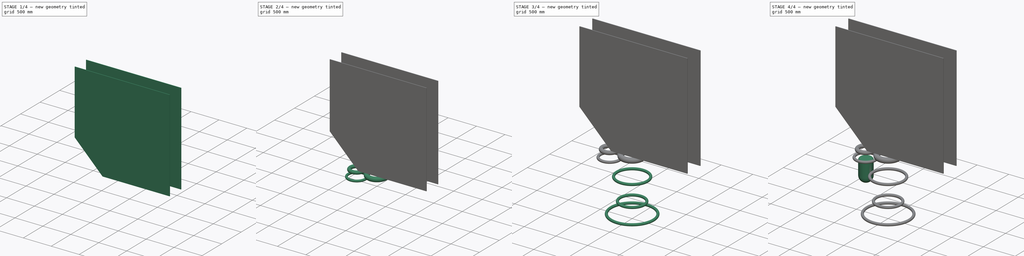
[diagram: build sequence overview — one tinted view per stage of 4, left to right]
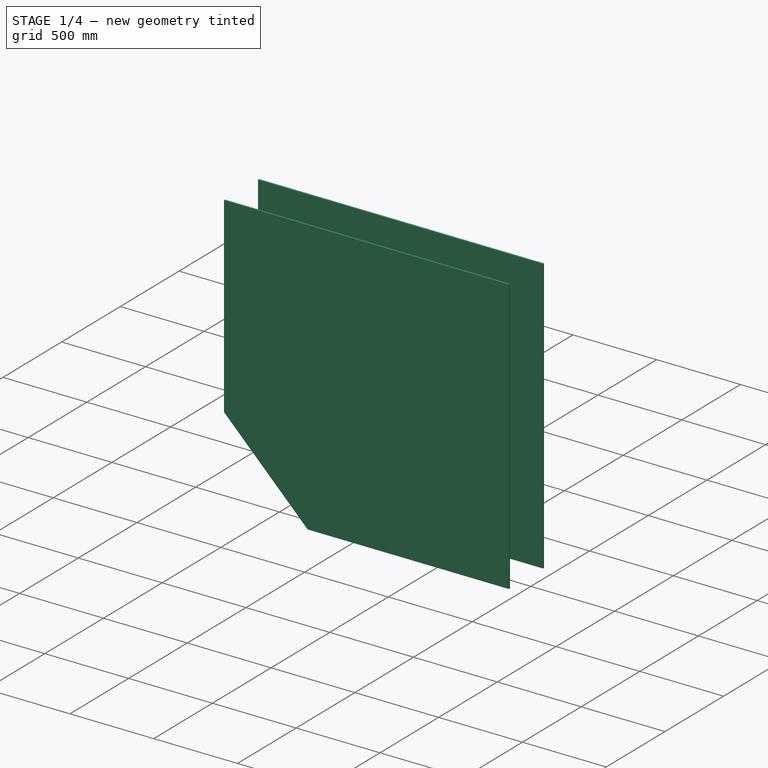
[diagram: stage 1 of 4 — iso view after this stage's code; geometry added in this stage tinted green]
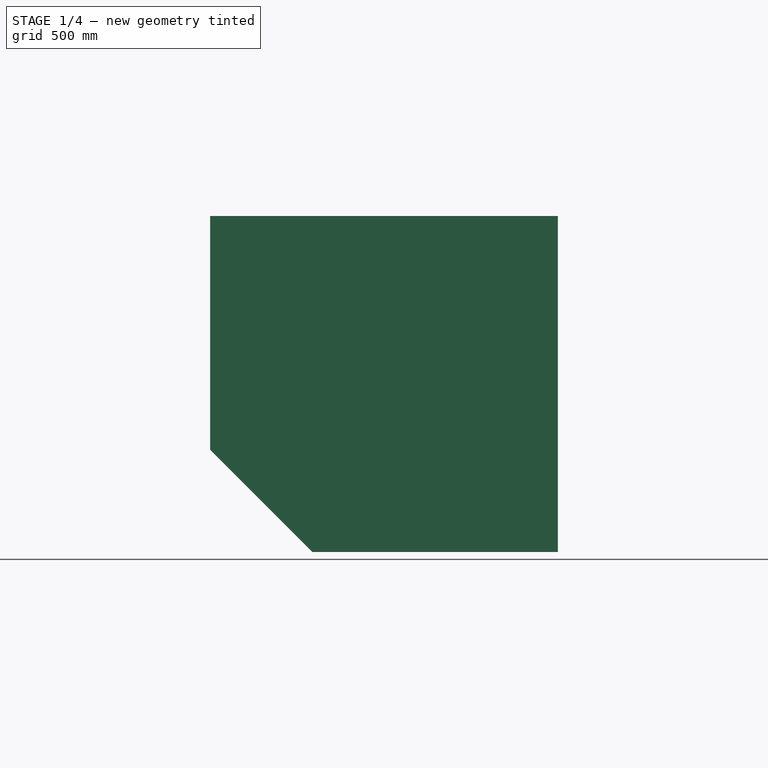
[diagram: stage 1 of 4 — front view after this stage's code; geometry added in this stage tinted green]
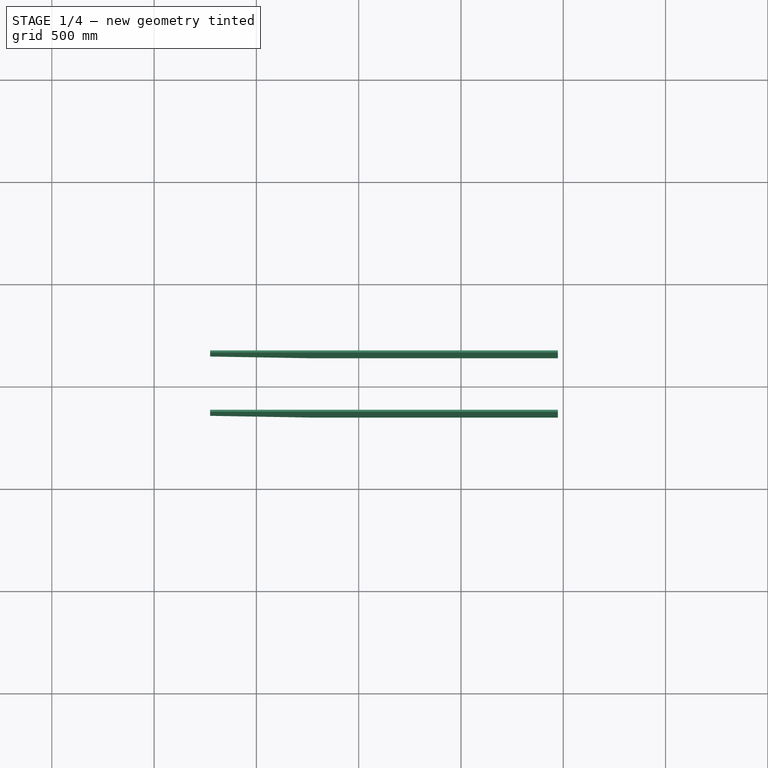
[diagram: stage 1 of 4 — top view after this stage's code; geometry added in this stage tinted green]
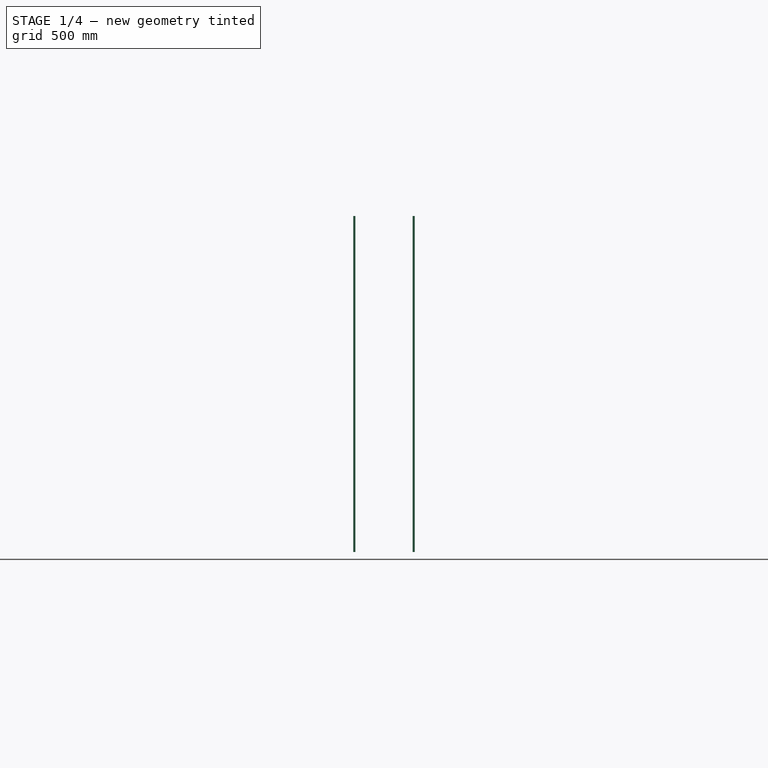
[diagram: stage 1 of 4 — right view after this stage's code; geometry added in this stage tinted green]
FCSTD DOCUMENT  (FreeCAD 0.17R13509 (Git))
Label: raptor
License: All rights reserved
LicenseURL: http://en.wikipedia.org/wiki/All_rights_reserved
objects: Sketcher::SketchObject×11, Part::Torus×6, Part::Revolution×4, Part::Sweep×2, App::Part×2, Part::Extrusion×2, Part::Cylinder×1, Part::Fillet×1
note: 27 computed .brp shape members not serialized (recipe doc carries the construction recipe); baked Part::Feature solids carry a one-line shape summary decoded from their .brp

FEATURE [Sketcher::SketchObject] Sketch006  label="injector sketch"
  Placement = pos=(0,0,0) rot=(1,0,0;1.5708rad)
  sketch-geometry (9):
    g0: Circle [constr] CenterX=110 CenterY=2200 CenterZ=0 NormalX=0 NormalY=0 NormalZ=1 AngleXU=0 Radius=10
    g1: Circle [constr] CenterX=110 CenterY=2140 CenterZ=0 NormalX=0 NormalY=0 NormalZ=1 AngleXU=0 Radius=10
    g2: Circle [constr] CenterX=146.985 CenterY=2082.42 CenterZ=0 NormalX=0 NormalY=0 NormalZ=1 AngleXU=0 Radius=10
    g3: BSplineCurve PolesCount=3 KnotsCount=2 Degree=2 IsPeriodic=0
    g4: GeomPoint [constr] X=110 Y=2200 Z=0
    g5: GeomPoint [constr] X=146.985 Y=2082.42 Z=0
    g6: LineSegment StartX=110 StartY=2200 StartZ=0 EndX=150 EndY=2238 EndZ=0
    g7: LineSegment StartX=150 StartY=2238 StartZ=0 EndX=150 EndY=2260 EndZ=0
    g8: LineSegment StartX=150 StartY=2260 StartZ=0 EndX=0 EndY=2260 EndZ=0
  constraints (13):
    c: Radius(g0) = 10
    c: Equal(g0,g1)
    c: Equal(g0,g2)
    c: InternalAlignment(g0,g3)
    c: InternalAlignment(g1,g3)
    c: InternalAlignment(g2,g3)
    c: InternalAlignment(g4,g3)
    c: InternalAlignment(g5,g3)
    c: Coincident(g6,g0)
    c: Coincident(g7,g6)
    c: Vertical(g7)
    c: Coincident(g8,g7)
    c: Horizontal(g8)
FEATURE [Part::Revolution] Revolve002  label="injector"
  Angle = 360
  Axis = (0,0,1)
  Base = (0,0,0)
  FaceMakerClass = Part::FaceMakerBullseye
  Solid = false
  Source = -> Sketch006
  Symmetric = false
FEATURE [Sketcher::SketchObject] Sketch007  label="lox sketch"
  Placement = pos=(0,0,0) rot=(1,0,0;1.5708rad)
  sketch-geometry (10):
    g0: Circle [constr] CenterX=-233.911 CenterY=2196.94 CenterZ=0 NormalX=0 NormalY=0 NormalZ=1 AngleXU=0 Radius=10
    g1: Circle [constr] CenterX=-293.034 CenterY=2140 CenterZ=0 NormalX=0 NormalY=0 NormalZ=1 AngleXU=0 Radius=10
    g2: Circle [constr] CenterX=-210 CenterY=2080 CenterZ=0 NormalX=0 NormalY=0 NormalZ=1 AngleXU=0 Radius=10
    g3: BSplineCurve PolesCount=3 KnotsCount=2 Degree=2 IsPeriodic=0
    g4: GeomPoint [constr] X=-233.911 Y=2196.94 Z=0
    g5: GeomPoint [constr] X=-210 Y=2080 Z=0
    g6: LineSegment StartX=-233.911 StartY=2196.94 StartZ=0 EndX=-291.228 EndY=2281.45 EndZ=0
    g7: LineSegment StartX=-291.228 StartY=2281.45 StartZ=0 EndX=-291.228 EndY=2461.19 EndZ=0
    g8: LineSegment StartX=-291.228 StartY=2461.19 StartZ=0 EndX=-354 EndY=2461.19 EndZ=0
    g9: LineSegment StartX=-210 StartY=2080 StartZ=0 EndX=-354 EndY=2080 EndZ=0
  constraints (17):
    c: Radius(g0) = 10
    c: Equal(g0,g1)
    c: Equal(g0,g2)
    c: InternalAlignment(g0,g3)
    c: InternalAlignment(g1,g3)
    c: InternalAlignment(g2,g3)
    c: InternalAlignment(g4,g3)
    c: InternalAlignment(g5,g3)
    c: Coincident(g6,g0)
    c: Coincident(g7,g6)
    c: Vertical(g7)
    c: Coincident(g8,g7)
    c: Horizontal(g8)
    c: Coincident(g9,g2)
    c: Horizontal(g9)
    c: DistanceX(g8,g-1) = 354
    c: DistanceX(g8,g9) = 0
FEATURE [Part::Revolution] Revolve003  label="lox pump"
  Angle = 360
  Axis = (0,0,1)
  Base = (-354,0,0)
  FaceMakerClass = Part::FaceMakerBullseye
  Solid = false
  Source = -> Sketch007
  Symmetric = false
FEATURE [Sketcher::SketchObject] Sketch008  label="fuel sketch1"
  Placement = pos=(0,0,0) rot=(0.57735,0.57735,0.57735;2.0944rad)
  sketch-geometry (12):
    g0: Circle [constr] CenterX=-157.166 CenterY=2200 CenterZ=0 NormalX=0 NormalY=0 NormalZ=1 AngleXU=0 Radius=20
    g1: Circle [constr] CenterX=-241.173 CenterY=2212.08 CenterZ=0 NormalX=0 NormalY=0 NormalZ=1 AngleXU=0 Radius=20
    g2: Circle [constr] CenterX=-277.305 CenterY=2115.42 CenterZ=0 NormalX=0 NormalY=0 NormalZ=1 AngleXU=0 Radius=20
    g3: BSplineCurve PolesCount=3 KnotsCount=2 Degree=2 IsPeriodic=0
    g4: GeomPoint [constr] X=-157.166 Y=2200 Z=0
    g5: GeomPoint [constr] X=-277.305 Y=2115.42 Z=0
    g6: Circle [constr] CenterX=-277.305 CenterY=2115.42 CenterZ=0 NormalX=0 NormalY=0 NormalZ=1 AngleXU=0 Radius=40
    g7: Circle [constr] CenterX=-362.731 CenterY=1907.44 CenterZ=0 NormalX=0 NormalY=0 NormalZ=1 AngleXU=0 Radius=194.246
    g8: Circle [constr] CenterX=-198.718 CenterY=1566.22 CenterZ=0 NormalX=0 NormalY=0 NormalZ=1 AngleXU=0 Radius=40
    g9: BSplineCurve PolesCount=3 KnotsCount=2 Degree=2 IsPeriodic=0
    g10: GeomPoint [constr] X=-277.305 Y=2115.42 Z=0
    g11: GeomPoint [constr] X=-198.718 Y=1566.22 Z=0
  constraints (16):
    c: Radius(g0) = 20
    c: Equal(g0,g1)
    c: Equal(g0,g2)
    c: InternalAlignment(g0,g3)
    c: InternalAlignment(g1,g3)
    c: InternalAlignment(g2,g3)
    c: InternalAlignment(g4,g3)
    c: InternalAlignment(g5,g3)
    c: Coincident(g6,g2)
    c: Radius(g6) = 40
    c: Equal(g6,g8)
    c: InternalAlignment(g6,g9)
    c: InternalAlignment(g7,g9)
    c: InternalAlignment(g8,g9)
    c: InternalAlignment(g10,g9)
    c: InternalAlignment(g11,g9)
FEATURE [Sketcher::SketchObject] Sketch009  label="fuel sketch2"
  Placement = pos=(0,-157,0) rot=(1,0,0;1.5708rad)
  sketch-geometry (1):
    g0: Circle CenterX=0.155904 CenterY=2198.4 CenterZ=0 NormalX=0 NormalY=0 NormalZ=1 AngleXU=0 Radius=26.4167
FEATURE [Part::Sweep] Sweep001  label="fuel"
  Frenet = false
  Placement = pos=(0,0,0) rot=(0,0,-1;0.523599rad)
  Sections = -> [Sketch009]
  Solid = false
  Spine = -> Sketch008 [Edge1,Edge2]
  Transition = 1
FEATURE [App::Part] Part  label="raptor"
  Group = -> [Sketch001,Revolve,Cylinder,Fillet,Torus,Torus001,Torus002,Sketch004,Sketch003,Sketch002,Sweep,Torus003,Torus004,Torus005,Sketch006,Sketch007,Sketch005,Revolve001,Revolve002,Revolve003,Sketch009,Sketch008,Sweep001]
  License = CC BY 3.0
  LicenseURL = http://creativecommons.org/licenses/by/3.0/
  Origin = -> Origin
FEATURE [Sketcher::SketchObject] Sketch010
  Placement = pos=(0,0,0) rot=(-1,0,0;4.71239rad)
  sketch-geometry (5):
    g0: LineSegment StartX=-226.598 StartY=2259.07 StartZ=0 EndX=973.715 EndY=2259.07 EndZ=0
    g1: LineSegment StartX=973.715 StartY=2259.07 StartZ=0 EndX=973.715 EndY=3901 EndZ=0
    g2: LineSegment StartX=973.715 StartY=3901 StartZ=0 EndX=-726.285 EndY=3901 EndZ=0
    g3: LineSegment StartX=-726.285 StartY=2758.76 StartZ=0 EndX=-226.598 EndY=2259.07 EndZ=0
    g4: LineSegment StartX=-726.285 StartY=3901 StartZ=0 EndX=-726.285 EndY=2758.76 EndZ=0
  constraints (10):
    c: Horizontal(g0)
    c: Coincident(g0,g1)
    c: Vertical(g1)
    c: Coincident(g1,g2)
    c: Horizontal(g2)
    c: Coincident(g3,g0)
    c: Angle(g0,g3) = 2.35619
    c: Coincident(g4,g2)
    c: Coincident(g4,g3)
    c: Vertical(g4)
FEATURE [Part::Extrusion] Extrude
  Base = -> Sketch010
  Dir = (0,-1,0)
  DirMode = 2
  FaceMakerClass = Part::FaceMakerBullseye
  LengthFwd = 10
  LengthRev = 0
  Placement = pos=(0,150,0) rot=(0,0,1;0rad)
  Solid = true
  Symmetric = false
FEATURE [Part::Extrusion] Extrude001
  Base = -> Sketch010
  Dir = (0,-1,0)
  DirMode = 2
  FaceMakerClass = Part::FaceMakerBullseye
  LengthFwd = 10
  LengthRev = 0
  Placement = pos=(0,-140,0) rot=(0,0,1;0rad)
  Solid = true
  Symmetric = false
FEATURE [App::Part] Part001  label="mount"
  Group = -> [Sketch010,Extrude001,Extrude]
  License = CC BY 3.0
  LicenseURL = http://creativecommons.org/licenses/by/3.0/
  Origin = -> Origin001
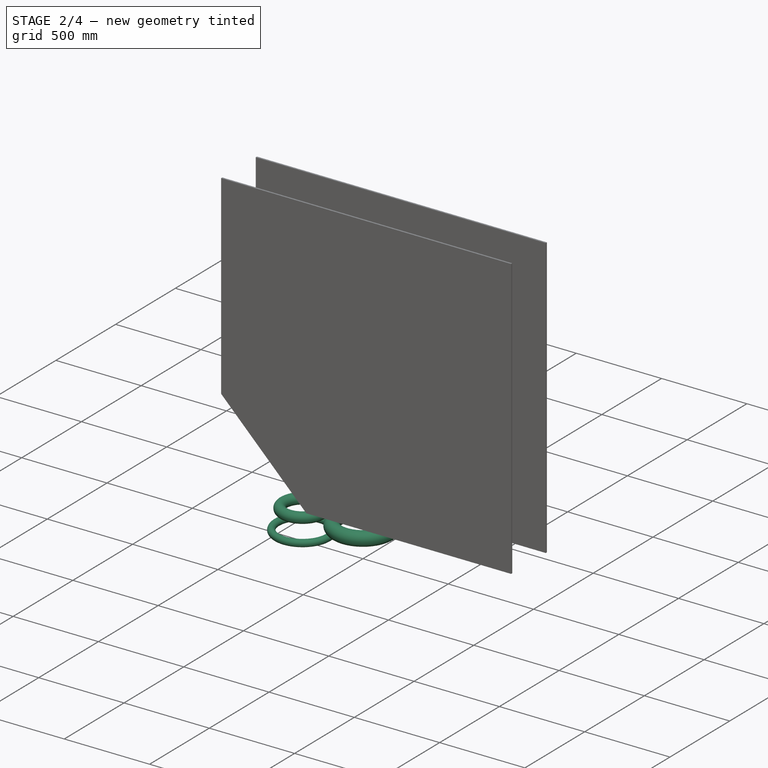
[diagram: stage 2 of 4 — iso view after this stage's code; geometry added in this stage tinted green]
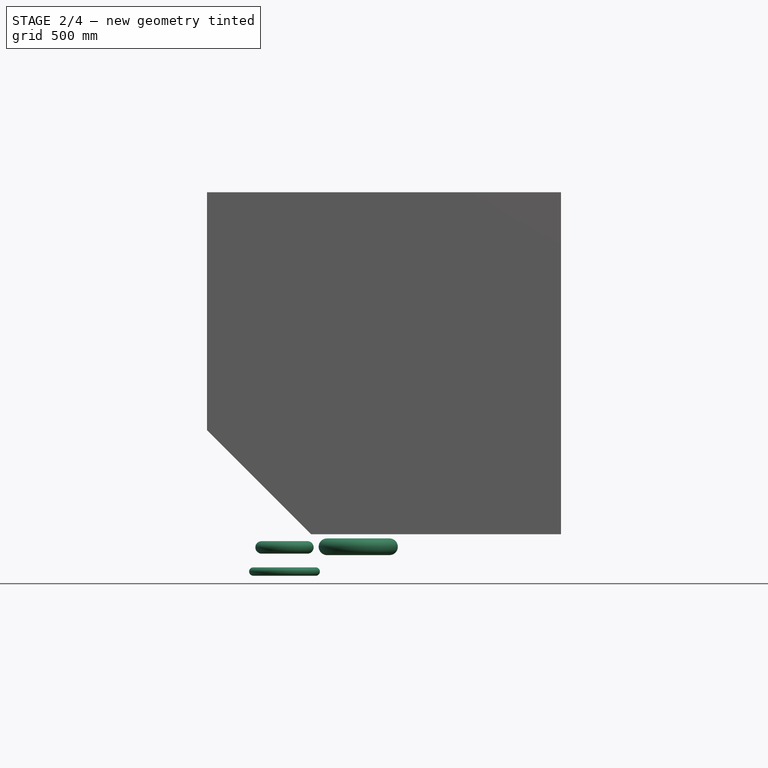
[diagram: stage 2 of 4 — front view after this stage's code; geometry added in this stage tinted green]
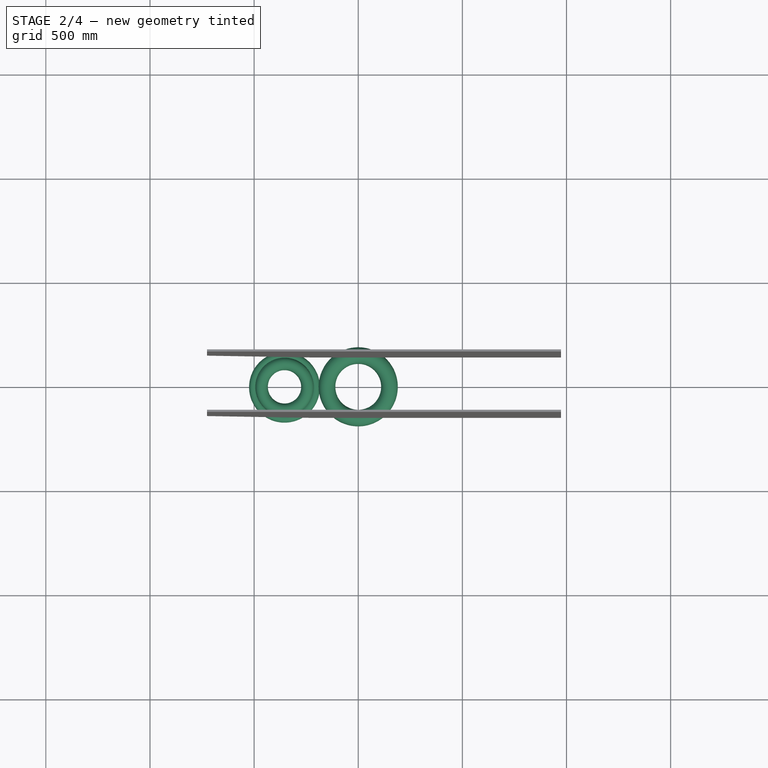
[diagram: stage 2 of 4 — top view after this stage's code; geometry added in this stage tinted green]
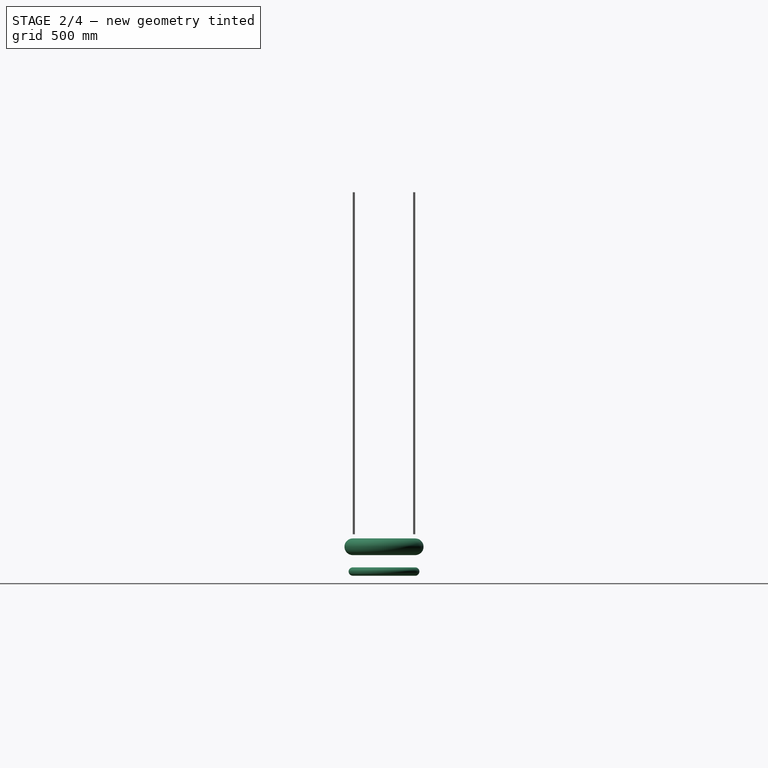
[diagram: stage 2 of 4 — right view after this stage's code; geometry added in this stage tinted green]
FEATURE [Sketcher::SketchObject] Sketch004
  Placement = pos=(0,0,1370) rot=(0,0,1;0rad)
  sketch-geometry (1):
    g0: Circle CenterX=-328.814 CenterY=-0.522608 CenterZ=0 NormalX=0 NormalY=0 NormalZ=1 AngleXU=0 Radius=18.5281
FEATURE [Part::Sweep] Sweep
  Frenet = false
  Sections = -> [Sketch002,Sketch004]
  Solid = false
  Spine = -> Sketch003 [Edge1]
  Transition = 1
FEATURE [Sketcher::SketchObject] Sketch005  label="vac sketch"
  Placement = pos=(0,0,0) rot=(1,0,0;1.5708rad)
  sketch-geometry (32):
    g0: LineSegment StartX=1200 StartY=-2090 StartZ=0 EndX=1190 EndY=-2090 EndZ=0
    g1-g5: Circle [constr] x5 (B-spline internal-alignment scaffolding for g6; pole/knot coordinates omitted)
    g6: BSplineCurve PolesCount=5 KnotsCount=3 Degree=3 IsPeriodic=0
    g7: GeomPoint [constr] X=1200 Y=-2090 Z=0
    g8: GeomPoint [constr] X=644.157 Y=779.267 Z=0
    g9: GeomPoint [constr] X=170.497 Y=1542.07 Z=0
    g10: Circle [constr] CenterX=170.497 CenterY=1542.07 CenterZ=0 NormalX=0 NormalY=0 NormalZ=1 AngleXU=0 Radius=20
    g11: Circle [constr] CenterX=220.155 CenterY=1796.29 CenterZ=0 NormalX=0 NormalY=0 NormalZ=1 AngleXU=0 Radius=20
    g12-g15: Circle [constr] x4 (B-spline internal-alignment scaffolding for g16; pole/knot coordinates omitted)
    g16: BSplineCurve PolesCount=4 KnotsCount=2 Degree=3 IsPeriodic=0
    g17: GeomPoint [constr] X=220.155 Y=1796.29 Z=0
    g18: GeomPoint [constr] X=0 Y=2090 Z=0
    g19: Circle [constr] CenterX=160.049 CenterY=1569.58 CenterZ=0 NormalX=0 NormalY=0 NormalZ=1 AngleXU=0 Radius=3
    g20: Circle [constr] CenterX=159.309 CenterY=1555.59 CenterZ=0 NormalX=0 NormalY=0 NormalZ=1 AngleXU=0 Radius=3
    g21: Circle [constr] CenterX=170.497 CenterY=1542.07 CenterZ=0 NormalX=0 NormalY=0 NormalZ=1 AngleXU=0 Radius=2.32171
    g22: BSplineCurve PolesCount=3 KnotsCount=2 Degree=2 IsPeriodic=0
    g23: GeomPoint [constr] X=160.049 Y=1569.58 Z=0
    g24: GeomPoint [constr] X=170.497 Y=1542.07 Z=0
    g25-g28: Circle [constr] x4 (B-spline internal-alignment scaffolding for g29; pole/knot coordinates omitted)
    g29: BSplineCurve PolesCount=4 KnotsCount=2 Degree=3 IsPeriodic=0
    g30: GeomPoint [constr] X=220.155 Y=1796.29 Z=0
    g31: GeomPoint [constr] X=160.049 Y=1569.58 Z=0
  constraints (33):
    c: Coincident(g1,g0)
    c: Radius(g1) = 100
    c: Equal(g1, g2-g5) x4
    c: InternalAlignment(g1-g5 -> g6) x5
    c: InternalAlignment(g7,g6)
    c: InternalAlignment(g8,g6)
    c: InternalAlignment(g9,g6)
    c: Coincident(g10,g5)
    c: Radius(g10) = 20
    c: Coincident(g12,g11)
    c: Radius(g12) = 40
    c: Equal(g12,g13)
    c: Equal(g12,g14)
    c: Equal(g12,g15)
    c: InternalAlignment(g12-g15 -> g16) x4
    c: InternalAlignment(g17,g16)
    c: InternalAlignment(g18,g16)
    c: Radius(g19) = 3
    c: Equal(g19,g20)
    c: PointOnObject(g21,g6)
    c: InternalAlignment(g19,g22)
    c: InternalAlignment(g20,g22)
    c: InternalAlignment(g21,g22)
    c: InternalAlignment(g23,g22)
    c: InternalAlignment(g24,g22)
    c: Coincident(g5,g21)
    c: Coincident(g25,g11)
    c: Radius(g25) = 10
    c: Equal(g25,g28)
    c: Coincident(g28,g19)
    c: InternalAlignment(g25-g28 -> g29) x4
    c: InternalAlignment(g30,g29)
    c: InternalAlignment(g31,g29)
FEATURE [Part::Revolution] Revolve001  label="vac nozzle"
  Angle = 360
  Axis = (0,0,1)
  Base = (0,0,0)
  FaceMakerClass = Part::FaceMakerBullseye
  Solid = false
  Source = -> Sketch005
  Symmetric = false
FEATURE [Part::Torus] Torus003  label="pump torus1"
  Angle1 = -180
  Angle2 = 180
  Angle3 = 360
  AttacherType = Attacher::AttachEngine3D
  Placement = pos=(-354,0,2080) rot=(0,0,1;0rad)
  Radius1 = 150
  Radius2 = 20
FEATURE [Part::Torus] Torus004  label="pump torus2"
  Angle1 = -180
  Angle2 = 180
  Angle3 = 360
  AttacherType = Attacher::AttachEngine3D
  Placement = pos=(-354,0,2196) rot=(0,0,1;0rad)
  Radius1 = 110
  Radius2 = 30
FEATURE [Part::Torus] Torus005  label="injector torus"
  Angle1 = -180
  Angle2 = 180
  Angle3 = 360
  AttacherType = Attacher::AttachEngine3D
  Placement = pos=(0,0,2199) rot=(0,0,1;0rad)
  Radius1 = 150
  Radius2 = 40
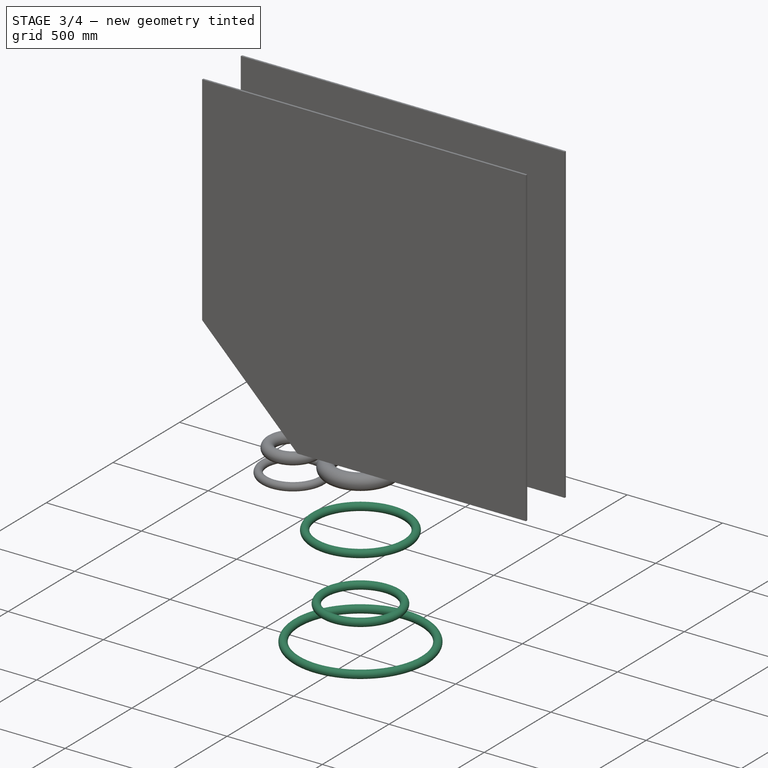
[diagram: stage 3 of 4 — iso view after this stage's code; geometry added in this stage tinted green]
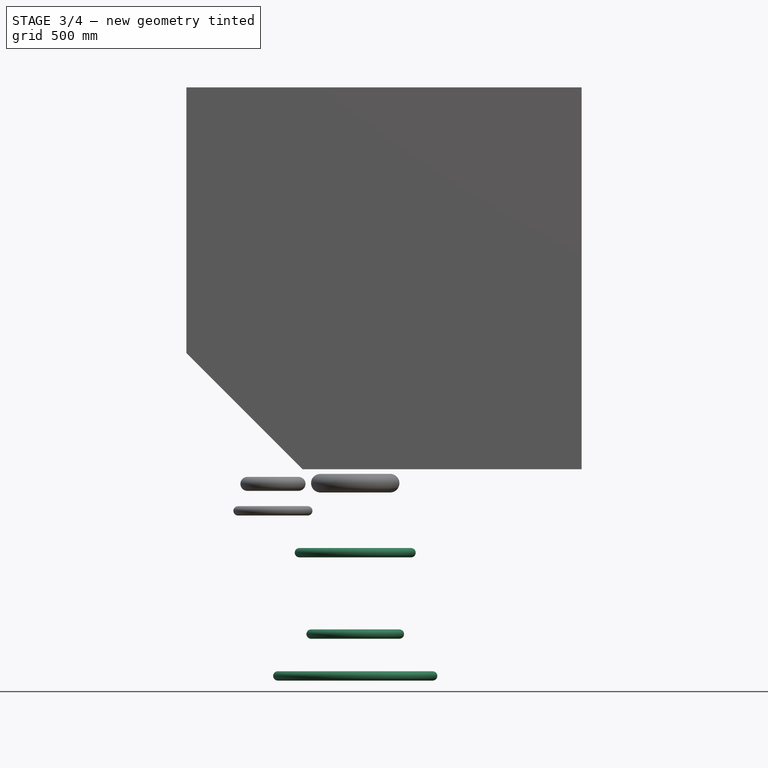
[diagram: stage 3 of 4 — front view after this stage's code; geometry added in this stage tinted green]
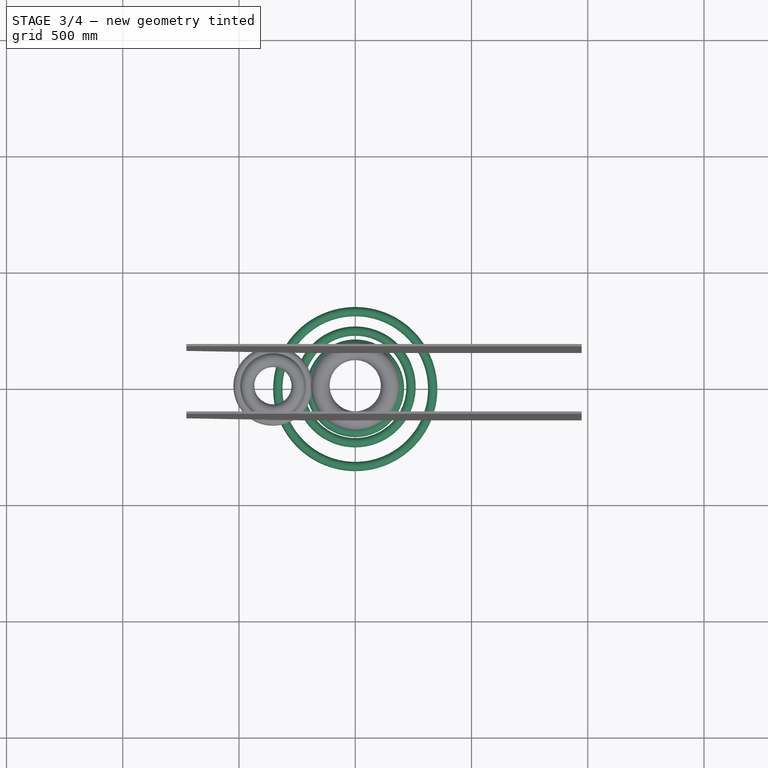
[diagram: stage 3 of 4 — top view after this stage's code; geometry added in this stage tinted green]
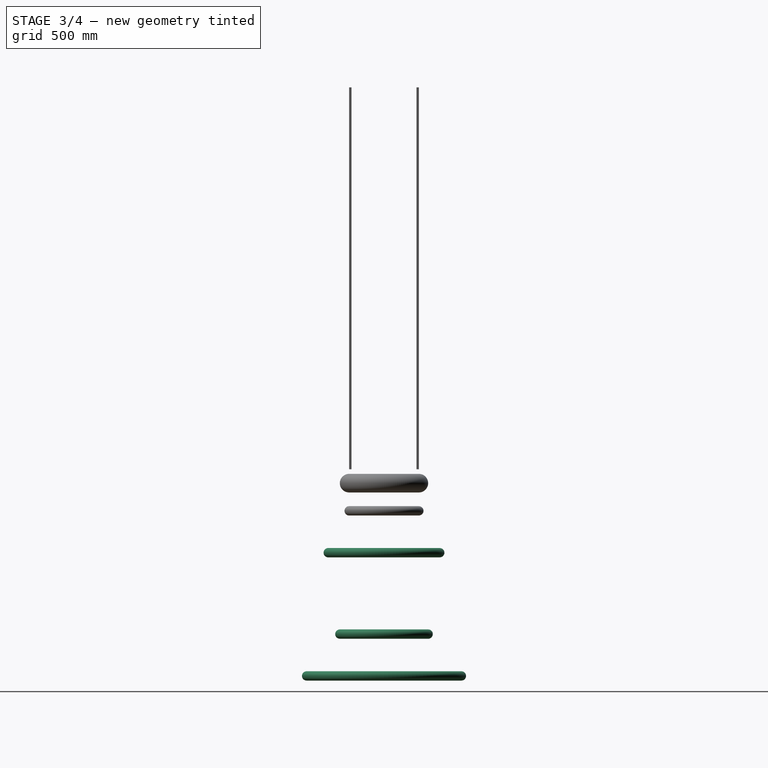
[diagram: stage 3 of 4 — right view after this stage's code; geometry added in this stage tinted green]
FEATURE [Part::Torus] Torus  label="fuel torus"
  Angle1 = -180
  Angle2 = 180
  Angle3 = 360
  AttacherType = Attacher::AttachEngine3D
  Placement = pos=(0,0,1370) rot=(0,0,1;0rad)
  Radius1 = 333
  Radius2 = 20
FEATURE [Sketcher::SketchObject] Sketch002
  Placement = pos=(0,0,1738) rot=(0,0,1;0rad)
  sketch-geometry (1):
    g0: Circle CenterX=-350.051 CenterY=-0.049992 CenterZ=0 NormalX=0 NormalY=0 NormalZ=1 AngleXU=0 Radius=34.4116
FEATURE [Sketcher::SketchObject] Sketch003  label="sweep path"
  Placement = pos=(0,0,0) rot=(1,0,0;1.5708rad)
  sketch-geometry (9):
    g0-g4: Circle [constr] x5 (B-spline internal-alignment scaffolding for g5; pole/knot coordinates omitted)
    g5: BSplineCurve PolesCount=5 KnotsCount=3 Degree=3 IsPeriodic=0
    g6: GeomPoint [constr] X=-348.852 Y=1731.94 Z=0
    g7: GeomPoint [constr] X=-242.341 Y=1587.72 Z=0
    g8: GeomPoint [constr] X=-347.061 Y=1370 Z=0
  constraints (6):
    c: Radius(g0) = 10
    c: Equal(g0,g4)
    c: InternalAlignment(g0-g4 -> g5) x5
    c: InternalAlignment(g6,g5)
    c: InternalAlignment(g7,g5)
    c: InternalAlignment(g8,g5)
FEATURE [Part::Torus] Torus001  label="gimbal torus"
  Angle1 = -180
  Angle2 = 180
  Angle3 = 360
  AttacherType = Attacher::AttachEngine3D
  Placement = pos=(0,0,1550) rot=(0,0,1;0rad)
  Radius1 = 190
  Radius2 = 20
FEATURE [Part::Torus] Torus002  label="combustor torus"
  Angle1 = -180
  Angle2 = 180
  Angle3 = 360
  AttacherType = Attacher::AttachEngine3D
  Placement = pos=(0,0,1900) rot=(0,0,1;0rad)
  Radius1 = 240
  Radius2 = 20
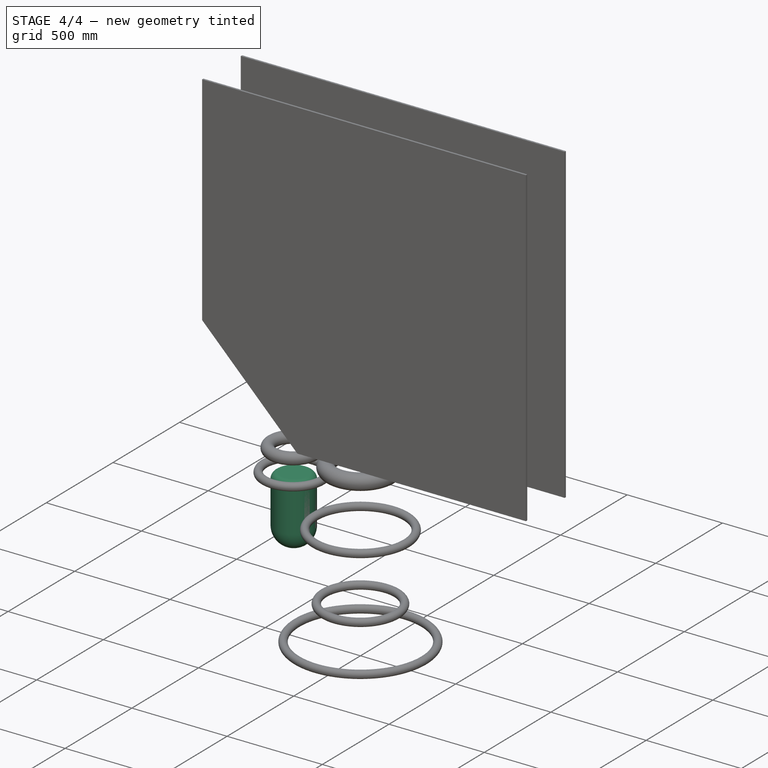
[diagram: stage 4 of 4 — iso view after this stage's code; geometry added in this stage tinted green]
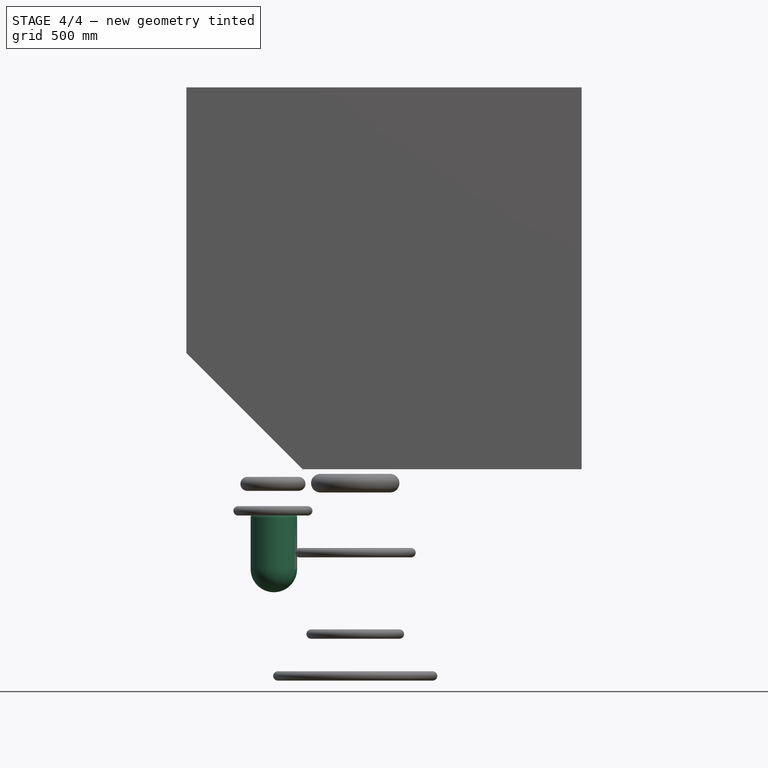
[diagram: stage 4 of 4 — front view after this stage's code; geometry added in this stage tinted green]
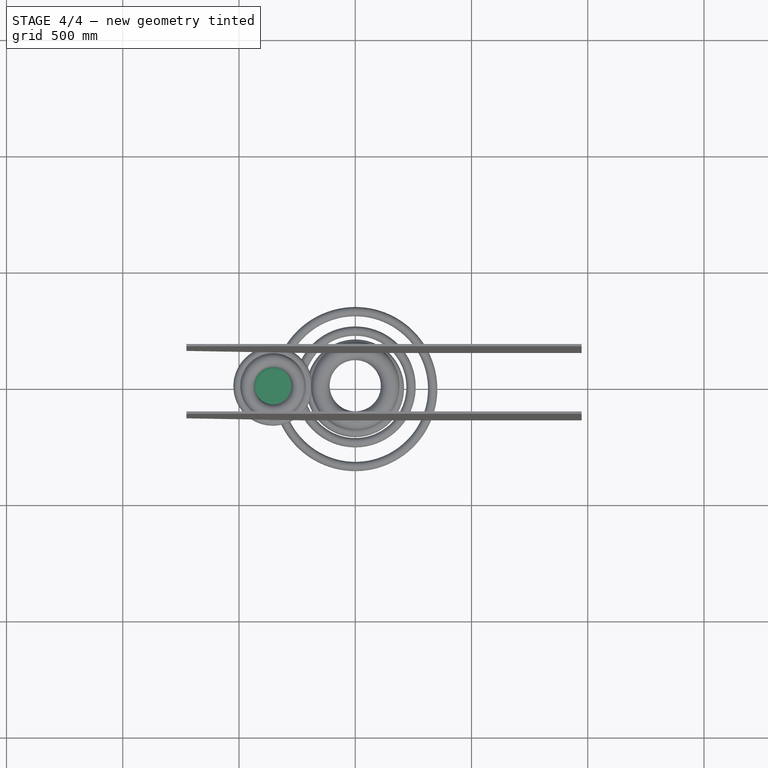
[diagram: stage 4 of 4 — top view after this stage's code; geometry added in this stage tinted green]
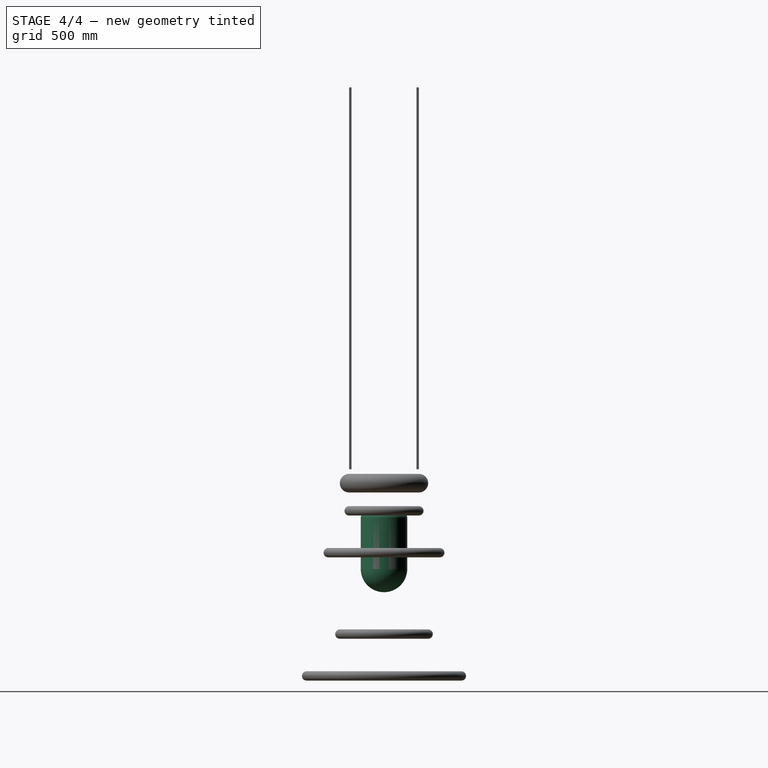
[diagram: stage 4 of 4 — right view after this stage's code; geometry added in this stage tinted green]
FEATURE [Sketcher::SketchObject] Sketch  label="dimensions"
  Placement = pos=(0,0,0) rot=(1,0,0;1.5708rad)
  sketch-geometry (6):
    g0: LineSegment StartX=650 StartY=0 StartZ=0 EndX=650 EndY=550 EndZ=0
    g1: LineSegment StartX=210 StartY=1560 StartZ=0 EndX=-155.162 EndY=1560 EndZ=0
    g2: LineSegment StartX=160 StartY=1720 StartZ=0 EndX=160 EndY=1333.18 EndZ=0
    g3: LineSegment StartX=74.4417 StartY=2090 StartZ=0 EndX=-140 EndY=2090 EndZ=0
    g4: LineSegment StartX=1200 StartY=-1842.25 StartZ=0 EndX=1200 EndY=-2144.81 EndZ=0
    g5: LineSegment StartX=770 StartY=-2090 StartZ=0 EndX=1375.75 EndY=-2090 EndZ=0
  constraints (7):
    c: Horizontal(g1)
    c: Vertical(g2)
    c: Horizontal(g3)
    c: Vertical(g4)
    c: DistanceX(g-1,g4) = 1200
    c: Horizontal(g5)
    c: DistanceY(g5,g-1) = 2090
FEATURE [Sketcher::SketchObject] Sketch001  label="sea level sketch"
  Placement = pos=(0,0,0) rot=(1,0,0;1.5708rad)
  sketch-geometry (32):
    g0: LineSegment StartX=650 StartY=0 StartZ=0 EndX=640 EndY=0 EndZ=0
    g1-g5: Circle [constr] x5 (B-spline internal-alignment scaffolding for g6; pole/knot coordinates omitted)
    g6: BSplineCurve PolesCount=5 KnotsCount=3 Degree=3 IsPeriodic=0
    g7: GeomPoint [constr] X=650 Y=0 Z=0
    g8: GeomPoint [constr] X=445.682 Y=1102.68 Z=0
    g9: GeomPoint [constr] X=170.497 Y=1542.07 Z=0
    g10: Circle [constr] CenterX=170.497 CenterY=1542.07 CenterZ=0 NormalX=0 NormalY=0 NormalZ=1 AngleXU=0 Radius=20
    g11: Circle [constr] CenterX=220.155 CenterY=1796.29 CenterZ=0 NormalX=0 NormalY=0 NormalZ=1 AngleXU=0 Radius=20
    g12-g15: Circle [constr] x4 (B-spline internal-alignment scaffolding for g16; pole/knot coordinates omitted)
    g16: BSplineCurve PolesCount=4 KnotsCount=2 Degree=3 IsPeriodic=0
    g17: GeomPoint [constr] X=220.155 Y=1796.29 Z=0
    g18: GeomPoint [constr] X=0 Y=2090 Z=0
    g19: Circle [constr] CenterX=160.049 CenterY=1569.58 CenterZ=0 NormalX=0 NormalY=0 NormalZ=1 AngleXU=0 Radius=3
    g20: Circle [constr] CenterX=159.309 CenterY=1555.59 CenterZ=0 NormalX=0 NormalY=0 NormalZ=1 AngleXU=0 Radius=3
    g21: Circle [constr] CenterX=170.497 CenterY=1542.07 CenterZ=0 NormalX=0 NormalY=0 NormalZ=1 AngleXU=0 Radius=2.32171
    g22: BSplineCurve PolesCount=3 KnotsCount=2 Degree=2 IsPeriodic=0
    g23: GeomPoint [constr] X=160.049 Y=1569.58 Z=0
    g24: GeomPoint [constr] X=170.497 Y=1542.07 Z=0
    g25-g28: Circle [constr] x4 (B-spline internal-alignment scaffolding for g29; pole/knot coordinates omitted)
    g29: BSplineCurve PolesCount=4 KnotsCount=2 Degree=3 IsPeriodic=0
    g30: GeomPoint [constr] X=220.155 Y=1796.29 Z=0
    g31: GeomPoint [constr] X=160.049 Y=1569.58 Z=0
  constraints (33):
    c: Coincident(g1,g0)
    c: Radius(g1) = 100
    c: Equal(g1, g2-g5) x4
    c: InternalAlignment(g1-g5 -> g6) x5
    c: InternalAlignment(g7,g6)
    c: InternalAlignment(g8,g6)
    c: InternalAlignment(g9,g6)
    c: Coincident(g10,g5)
    c: Radius(g10) = 20
    c: Coincident(g12,g11)
    c: Radius(g12) = 40
    c: Equal(g12,g13)
    c: Equal(g12,g14)
    c: Equal(g12,g15)
    c: InternalAlignment(g12-g15 -> g16) x4
    c: InternalAlignment(g17,g16)
    c: InternalAlignment(g18,g16)
    c: Radius(g19) = 3
    c: Equal(g19,g20)
    c: PointOnObject(g21,g6)
    c: InternalAlignment(g19,g22)
    c: InternalAlignment(g20,g22)
    c: InternalAlignment(g21,g22)
    c: InternalAlignment(g23,g22)
    c: InternalAlignment(g24,g22)
    c: Coincident(g5,g21)
    c: Coincident(g25,g11)
    c: Radius(g25) = 10
    c: Equal(g25,g28)
    c: Coincident(g28,g19)
    c: InternalAlignment(g25-g28 -> g29) x4
    c: InternalAlignment(g30,g29)
    c: InternalAlignment(g31,g29)
FEATURE [Part::Revolution] Revolve  label="sea level nozzle"
  Angle = 360
  Axis = (0,0,1)
  Base = (0,0,0)
  FaceMakerClass = Part::FaceMakerBullseye
  Solid = false
  Source = -> Sketch001
  Symmetric = false
FEATURE [Part::Cylinder] Cylinder
  Angle = 360
  AttacherType = Attacher::AttachEngine3D
  Height = 350
  Placement = pos=(-350,0,1730) rot=(0,0,1;0rad)
  Radius = 100
FEATURE [Part::Fillet] Fillet  label="methane pump"
  Base = -> Cylinder
  Edges = 2 edges: [Edge1 r=30,Edge3 r=100]
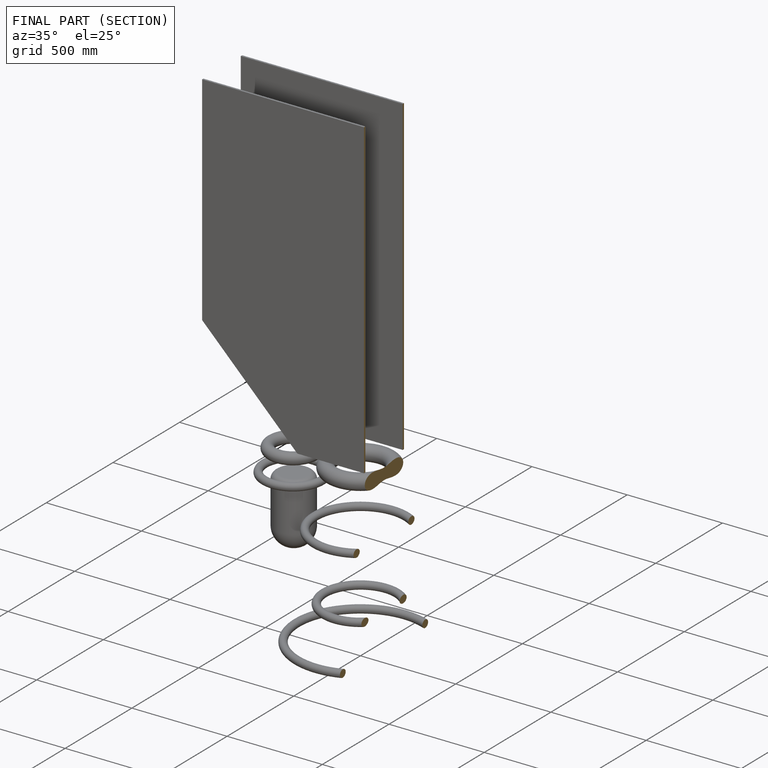
[diagram: finished part — half-section view (interior)]
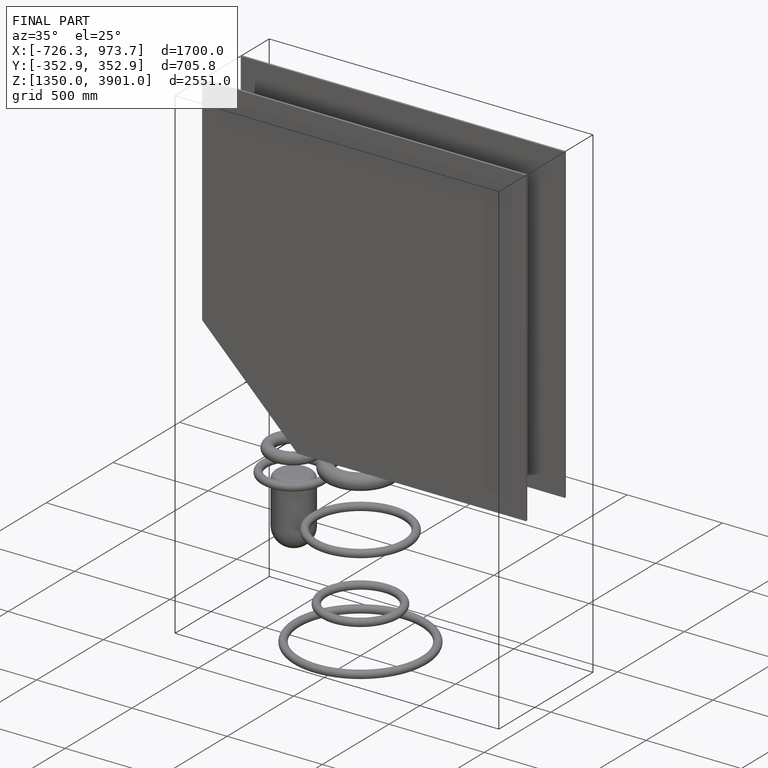
[diagram: finished part — iso view with bounding-box wireframe]
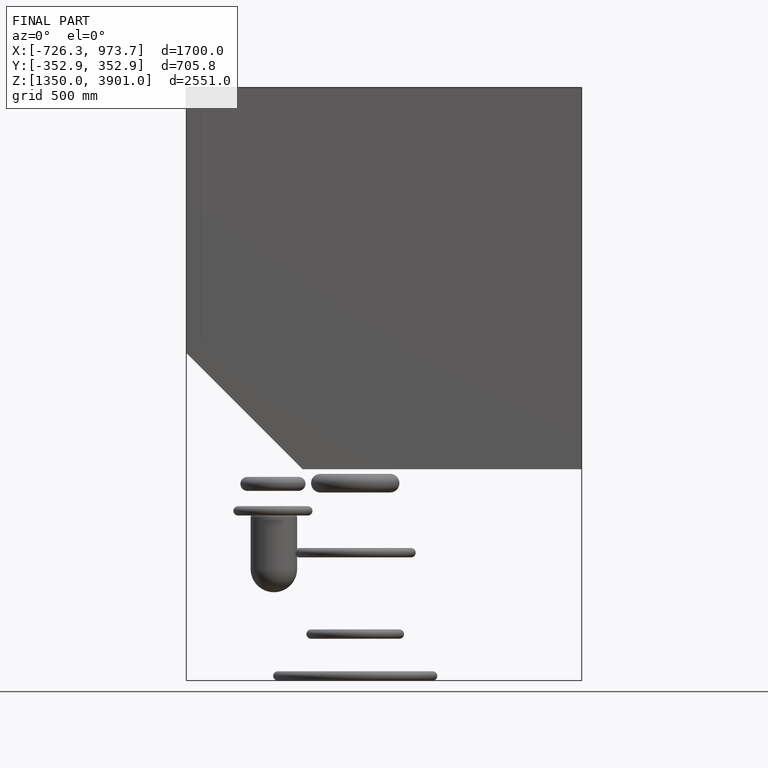
[diagram: finished part — front view with bounding-box wireframe]
